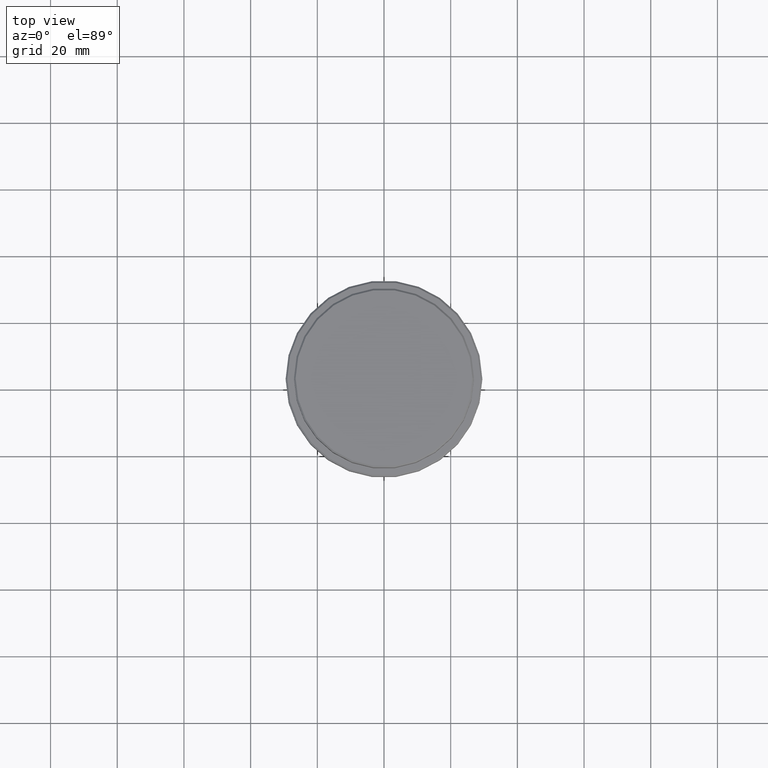
[diagram: clean part render]
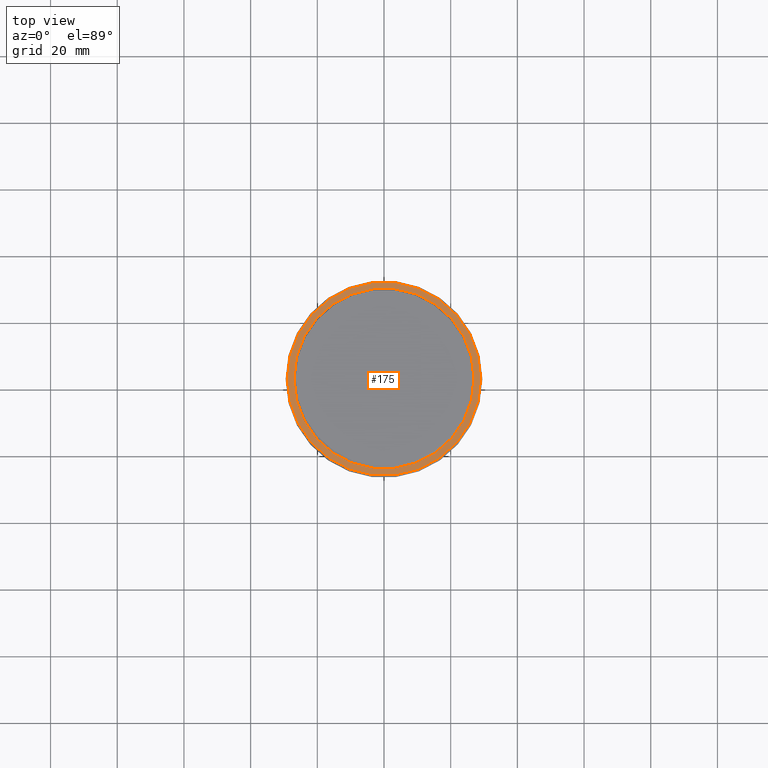
[diagram: same view with one face highlighted and labeled with its STEP entity id]
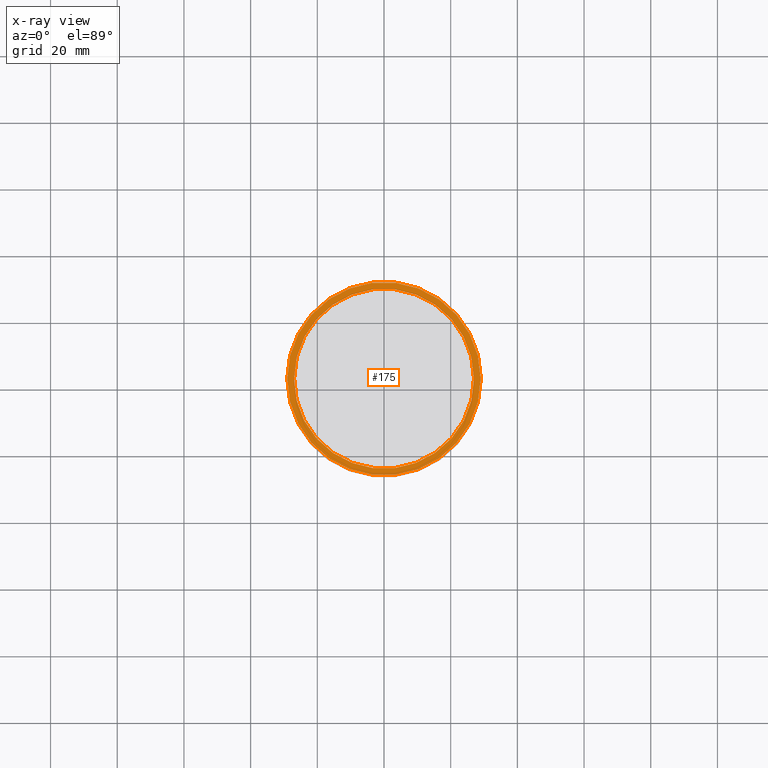
[diagram: x-ray of the same camera — body ghosted, the highlighted face saturated]
A machine part, top view. The second image highlights one B-rep face of the part: STEP entity #175.
The next image is the same camera in x-ray: the body ghosted, the highlighted face saturated — about 0% of this face is hidden behind the body in this view.
In plain terms, the highlighted planar face has unit normal (0, -0, 1).
Its self-contained STEP definition (entity closure, byte-faithful):
#11 = DIRECTION ( 'NONE',  ( 1.000000000000000000, 0.000000000000000000, 0.000000000000000000 ) ) ;
#17 = FACE_OUTER_BOUND ( 'NONE', #288, .T. ) ;
#29 = DIRECTION ( 'NONE',  ( 1.000000000000000000, 0.000000000000000000, 0.000000000000000000 ) ) ;
#51 = DIRECTION ( 'NONE',  ( 0.000000000000000000, -0.000000000000000000, 1.000000000000000000 ) ) ;
#54 = EDGE_CURVE ( 'NONE', #530, #363, #945, .T. ) ;
#60 = EDGE_CURVE ( 'NONE', #953, #893, #1089, .T. ) ;
#124 = DIRECTION ( 'NONE',  ( 1.000000000000000000, 0.000000000000000000, 0.000000000000000000 ) ) ;
#144 = CIRCLE ( 'NONE', #1024, 28.99999999999999645 ) ;
#145 = PLANE ( 'NONE',  #767 ) ;
#175 = ADVANCED_FACE ( 'NONE', ( #17, #806 ), #145, .T. ) ;
#227 = AXIS2_PLACEMENT_3D ( 'NONE', #982, #1294, #11 ) ;
#288 = EDGE_LOOP ( 'NONE', ( #832, #1076 ) ) ;
#324 = AXIS2_PLACEMENT_3D ( 'NONE', #1201, #449, #124 ) ;
#363 = VERTEX_POINT ( 'NONE', #736 ) ;
#449 = DIRECTION ( 'NONE',  ( 0.000000000000000000, 0.000000000000000000, -1.000000000000000000 ) ) ;
#530 = VERTEX_POINT ( 'NONE', #1113 ) ;
#556 = DIRECTION ( 'NONE',  ( 1.000000000000000000, 0.000000000000000000, 0.000000000000000000 ) ) ;
#569 = DIRECTION ( 'NONE',  ( -0.000000000000000000, -0.000000000000000000, 1.000000000000000000 ) ) ;
#622 = EDGE_LOOP ( 'NONE', ( #1196, #1342 ) ) ;
#663 = CARTESIAN_POINT ( 'NONE',  ( 0.000000000000000000, 0.000000000000000000, -12.00000000000000355 ) ) ;
#672 = CARTESIAN_POINT ( 'NONE',  ( 0.000000000000000000, 0.000000000000000000, -12.00000000000000355 ) ) ;
#687 = DIRECTION ( 'NONE',  ( 1.000000000000000000, 0.000000000000000000, 0.000000000000000000 ) ) ;
#736 = CARTESIAN_POINT ( 'NONE',  ( 28.99999999999999645, 3.582091887506007817E-15, -12.00000000000000355 ) ) ;
#767 = AXIS2_PLACEMENT_3D ( 'NONE', #1020, #51, #29 ) ;
#790 = AXIS2_PLACEMENT_3D ( 'NONE', #663, #873, #556 ) ;
#806 = FACE_BOUND ( 'NONE', #622, .T. ) ;
#832 = ORIENTED_EDGE ( 'NONE', *, *, #54, .T. ) ;
#873 = DIRECTION ( 'NONE',  ( 0.000000000000000000, 0.000000000000000000, -1.000000000000000000 ) ) ;
#893 = VERTEX_POINT ( 'NONE', #969 ) ;
#945 = CIRCLE ( 'NONE', #227, 28.99999999999999645 ) ;
#951 = CIRCLE ( 'NONE', #324, 26.99999999999999645 ) ;
#953 = VERTEX_POINT ( 'NONE', #1323 ) ;
#969 = CARTESIAN_POINT ( 'NONE',  ( -26.99999999999999645, 3.306546357697853339E-15, -12.00000000000000355 ) ) ;
#982 = CARTESIAN_POINT ( 'NONE',  ( 0.000000000000000000, 0.000000000000000000, -12.00000000000000355 ) ) ;
#1020 = CARTESIAN_POINT ( 'NONE',  ( 0.000000000000000000, 26.49999999999999645, -12.00000000000000355 ) ) ;
#1024 = AXIS2_PLACEMENT_3D ( 'NONE', #672, #569, #687 ) ;
#1076 = ORIENTED_EDGE ( 'NONE', *, *, #1083, .T. ) ;
#1083 = EDGE_CURVE ( 'NONE', #363, #530, #144, .T. ) ;
#1089 = CIRCLE ( 'NONE', #790, 26.99999999999999645 ) ;
#1113 = CARTESIAN_POINT ( 'NONE',  ( -28.99999999999999645, 0.000000000000000000, -12.00000000000000355 ) ) ;
#1196 = ORIENTED_EDGE ( 'NONE', *, *, #60, .T. ) ;
#1201 = CARTESIAN_POINT ( 'NONE',  ( 0.000000000000000000, 0.000000000000000000, -12.00000000000000355 ) ) ;
#1270 = EDGE_CURVE ( 'NONE', #893, #953, #951, .T. ) ;
#1294 = DIRECTION ( 'NONE',  ( -0.000000000000000000, -0.000000000000000000, 1.000000000000000000 ) ) ;
#1323 = CARTESIAN_POINT ( 'NONE',  ( 26.99999999999999645, 0.000000000000000000, -12.00000000000000355 ) ) ;
#1342 = ORIENTED_EDGE ( 'NONE', *, *, #1270, .T. ) ;